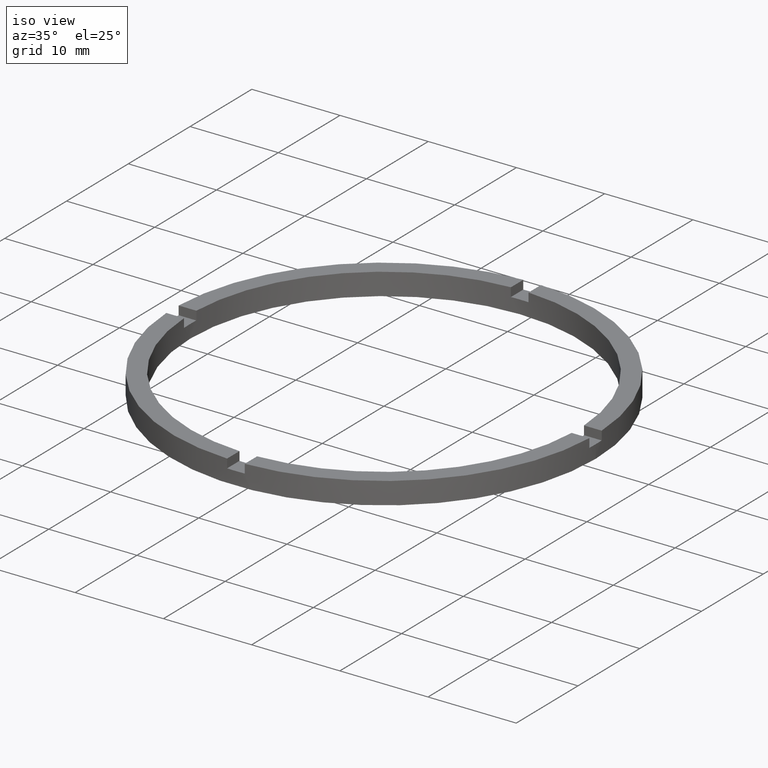
[diagram: clean part render]
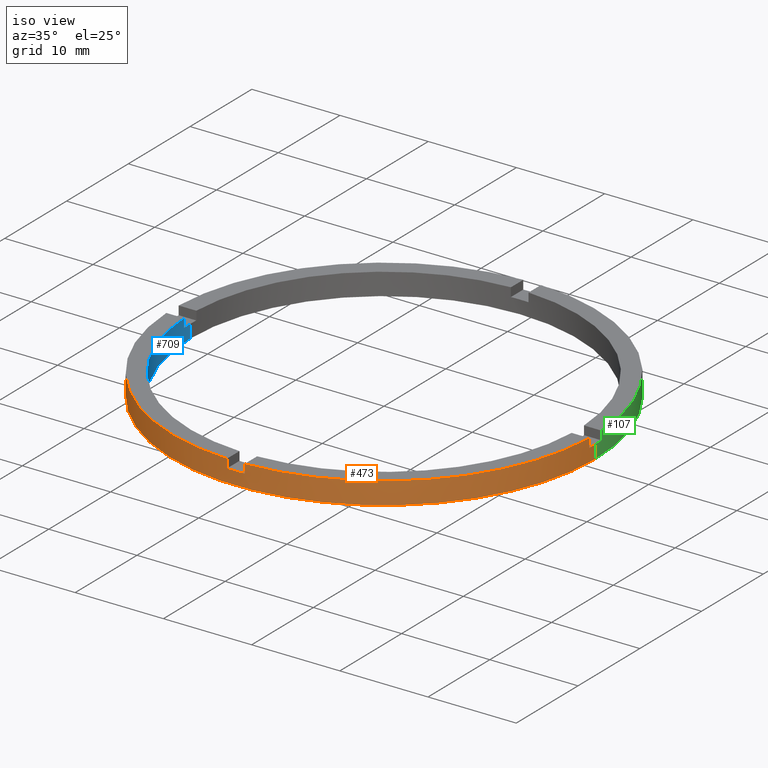
[diagram: same view with three faces highlighted in distinct colors, each labeled with its STEP entity id]
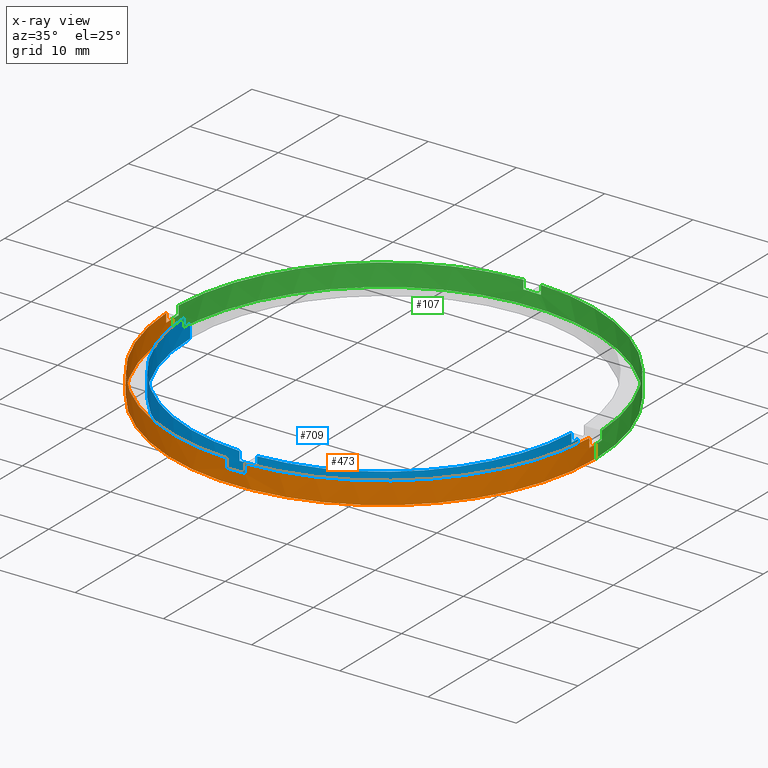
[diagram: x-ray of the same camera — body ghosted, the three highlighted faces saturated]
A machine part, iso view with three faces highlighted in distinct colors.
The next image is the same camera in x-ray (body ghosted, the three faces saturated) — at least one of them is partly hidden behind the body in this view.
Their STEP definitions:

[orange] entity #473 — the highlighted cylindrical surface (partial cylindrical patch) has radius 24 mm, axis along (-0, -0, -1).
#2 = CARTESIAN_POINT ( 'NONE',  ( 0.9999999999998389066, -23.97915761656360800, 1.500000000000000000 ) ) ;
#13 = VERTEX_POINT ( 'NONE', #703 ) ;
#18 = ORIENTED_EDGE ( 'NONE', *, *, #378, .F. ) ;
#19 = VERTEX_POINT ( 'NONE', #158 ) ;
#23 = ORIENTED_EDGE ( 'NONE', *, *, #393, .F. ) ;
#29 = VERTEX_POINT ( 'NONE', #502 ) ;
#37 = VECTOR ( 'NONE', #154, 1000.000000000000000 ) ;
#50 = ORIENTED_EDGE ( 'NONE', *, *, #303, .T. ) ;
#65 = CIRCLE ( 'NONE', #683, 24.00000000000000355 ) ;
#66 = VERTEX_POINT ( 'NONE', #467 ) ;
#67 = CIRCLE ( 'NONE', #519, 24.00000000000000355 ) ;
#75 = LINE ( 'NONE', #716, #326 ) ;
#76 = AXIS2_PLACEMENT_3D ( 'NONE', #133, #174, #425 ) ;
#79 = CARTESIAN_POINT ( 'NONE',  ( 0.000000000000000000, 0.000000000000000000, 1.500000000000000000 ) ) ;
#89 = CARTESIAN_POINT ( 'NONE',  ( -24.00000000000000355, 0.000000000000000000, 2.500000000000000000 ) ) ;
#128 = AXIS2_PLACEMENT_3D ( 'NONE', #735, #543, #290 ) ;
#130 = CARTESIAN_POINT ( 'NONE',  ( 0.000000000000000000, 0.000000000000000000, 2.500000000000000000 ) ) ;
#133 = CARTESIAN_POINT ( 'NONE',  ( 0.000000000000000000, 0.000000000000000000, 2.500000000000000000 ) ) ;
#137 = EDGE_CURVE ( 'NONE', #19, #691, #281, .T. ) ;
#141 = DIRECTION ( 'NONE',  ( -0.000000000000000000, -0.000000000000000000, -1.000000000000000000 ) ) ;
#143 = EDGE_CURVE ( 'NONE', #66, #218, #586, .T. ) ;
#154 = DIRECTION ( 'NONE',  ( -0.000000000000000000, -0.000000000000000000, -1.000000000000000000 ) ) ;
#158 = CARTESIAN_POINT ( 'NONE',  ( -23.97915761656360445, -1.000000000000025757, 2.500000000000000000 ) ) ;
#170 = VERTEX_POINT ( 'NONE', #379 ) ;
#174 = DIRECTION ( 'NONE',  ( -0.000000000000000000, -0.000000000000000000, -1.000000000000000000 ) ) ;
#195 = AXIS2_PLACEMENT_3D ( 'NONE', #130, #727, #518 ) ;
#202 = CARTESIAN_POINT ( 'NONE',  ( -23.97915761656360445, -1.000000000000025757, 1.500000000000000000 ) ) ;
#208 = CARTESIAN_POINT ( 'NONE',  ( 0.9999999999998393507, -23.97915761656361155, 2.500000000000000000 ) ) ;
#209 = CIRCLE ( 'NONE', #736, 24.00000000000000355 ) ;
#210 = CARTESIAN_POINT ( 'NONE',  ( -1.000000000000160760, -23.97915761656359734, 2.500000000000000000 ) ) ;
#214 = CARTESIAN_POINT ( 'NONE',  ( 0.000000000000000000, 0.000000000000000000, 2.500000000000000000 ) ) ;
#217 = EDGE_LOOP ( 'NONE', ( #531, #455, #464, #327, #569, #580, #275, #23, #560, #18, #50, #301 ) ) ;
#218 = VERTEX_POINT ( 'NONE', #551 ) ;
#244 = CARTESIAN_POINT ( 'NONE',  ( 0.000000000000000000, 0.000000000000000000, 0.000000000000000000 ) ) ;
#260 = CARTESIAN_POINT ( 'NONE',  ( -23.97915761656360445, -1.000000000000025757, 2.500000000000000000 ) ) ;
#275 = ORIENTED_EDGE ( 'NONE', *, *, #449, .T. ) ;
#281 = LINE ( 'NONE', #260, #37 ) ;
#290 = DIRECTION ( 'NONE',  ( 1.000000000000000000, 0.000000000000000000, 0.000000000000000000 ) ) ;
#291 = VERTEX_POINT ( 'NONE', #2 ) ;
#295 = DIRECTION ( 'NONE',  ( 1.000000000000000000, 0.000000000000000000, 0.000000000000000000 ) ) ;
#297 = DIRECTION ( 'NONE',  ( 0.000000000000000000, 0.000000000000000000, 1.000000000000000000 ) ) ;
#301 = ORIENTED_EDGE ( 'NONE', *, *, #768, .T. ) ;
#303 = EDGE_CURVE ( 'NONE', #521, #317, #342, .T. ) ;
#317 = VERTEX_POINT ( 'NONE', #686 ) ;
#325 = CARTESIAN_POINT ( 'NONE',  ( 24.00000000000000355, 2.939152317953648289E-15, 0.000000000000000000 ) ) ;
#326 = VECTOR ( 'NONE', #328, 1000.000000000000000 ) ;
#327 = ORIENTED_EDGE ( 'NONE', *, *, #143, .F. ) ;
#328 = DIRECTION ( 'NONE',  ( -0.000000000000000000, -0.000000000000000000, -1.000000000000000000 ) ) ;
#342 = LINE ( 'NONE', #89, #609 ) ;
#360 = VECTOR ( 'NONE', #485, 1000.000000000000000 ) ;
#361 = DIRECTION ( 'NONE',  ( -0.000000000000000000, 0.000000000000000000, 1.000000000000000000 ) ) ;
#378 = EDGE_CURVE ( 'NONE', #521, #691, #610, .T. ) ;
#379 = CARTESIAN_POINT ( 'NONE',  ( 23.97915761656359734, -1.000000000000157652, 1.500000000000000000 ) ) ;
#393 = EDGE_CURVE ( 'NONE', #19, #29, #67, .T. ) ;
#425 = DIRECTION ( 'NONE',  ( -1.000000000000000000, 0.000000000000000000, 0.000000000000000000 ) ) ;
#427 = EDGE_CURVE ( 'NONE', #170, #13, #65, .T. ) ;
#430 = VERTEX_POINT ( 'NONE', #325 ) ;
#431 = EDGE_CURVE ( 'NONE', #170, #218, #601, .T. ) ;
#449 = EDGE_CURVE ( 'NONE', #699, #29, #632, .T. ) ;
#454 = CARTESIAN_POINT ( 'NONE',  ( 0.000000000000000000, 0.000000000000000000, 1.500000000000000000 ) ) ;
#455 = ORIENTED_EDGE ( 'NONE', *, *, #427, .F. ) ;
#462 = EDGE_CURVE ( 'NONE', #66, #291, #634, .T. ) ;
#464 = ORIENTED_EDGE ( 'NONE', *, *, #431, .T. ) ;
#467 = CARTESIAN_POINT ( 'NONE',  ( 0.9999999999998389066, -23.97915761656360800, 2.500000000000000000 ) ) ;
#470 = DIRECTION ( 'NONE',  ( 1.000000000000000000, 0.000000000000000000, 0.000000000000000000 ) ) ;
#473 = ADVANCED_FACE ( 'NONE', ( #640 ), #607, .T. ) ;
#484 = DIRECTION ( 'NONE',  ( -0.000000000000000000, -0.000000000000000000, -1.000000000000000000 ) ) ;
#485 = DIRECTION ( 'NONE',  ( 0.000000000000000000, 0.000000000000000000, 1.000000000000000000 ) ) ;
#489 = EDGE_CURVE ( 'NONE', #13, #430, #75, .T. ) ;
#490 = AXIS2_PLACEMENT_3D ( 'NONE', #244, #705, #470 ) ;
#502 = CARTESIAN_POINT ( 'NONE',  ( -1.000000000000160316, -23.97915761656359379, 2.500000000000000000 ) ) ;
#518 = DIRECTION ( 'NONE',  ( 1.000000000000000000, 0.000000000000000000, 0.000000000000000000 ) ) ;
#519 = AXIS2_PLACEMENT_3D ( 'NONE', #214, #678, #295 ) ;
#521 = VERTEX_POINT ( 'NONE', #700 ) ;
#531 = ORIENTED_EDGE ( 'NONE', *, *, #489, .F. ) ;
#543 = DIRECTION ( 'NONE',  ( 0.000000000000000000, 0.000000000000000000, 1.000000000000000000 ) ) ;
#547 = CIRCLE ( 'NONE', #490, 24.00000000000000355 ) ;
#551 = CARTESIAN_POINT ( 'NONE',  ( 23.97915761656359734, -1.000000000000157652, 2.500000000000000000 ) ) ;
#560 = ORIENTED_EDGE ( 'NONE', *, *, #137, .T. ) ;
#569 = ORIENTED_EDGE ( 'NONE', *, *, #462, .T. ) ;
#580 = ORIENTED_EDGE ( 'NONE', *, *, #738, .F. ) ;
#586 = CIRCLE ( 'NONE', #195, 24.00000000000000355 ) ;
#601 = LINE ( 'NONE', #773, #619 ) ;
#607 = CYLINDRICAL_SURFACE ( 'NONE', #76, 24.00000000000000355 ) ;
#609 = VECTOR ( 'NONE', #141, 1000.000000000000000 ) ;
#610 = CIRCLE ( 'NONE', #128, 24.00000000000000355 ) ;
#619 = VECTOR ( 'NONE', #297, 1000.000000000000000 ) ;
#632 = LINE ( 'NONE', #210, #360 ) ;
#634 = LINE ( 'NONE', #208, #641 ) ;
#640 = FACE_OUTER_BOUND ( 'NONE', #217, .T. ) ;
#641 = VECTOR ( 'NONE', #484, 1000.000000000000000 ) ;
#677 = DIRECTION ( 'NONE',  ( 0.000000000000000000, 0.000000000000000000, 1.000000000000000000 ) ) ;
#678 = DIRECTION ( 'NONE',  ( 0.000000000000000000, 0.000000000000000000, 1.000000000000000000 ) ) ;
#683 = AXIS2_PLACEMENT_3D ( 'NONE', #79, #677, #770 ) ;
#686 = CARTESIAN_POINT ( 'NONE',  ( -24.00000000000000355, 0.000000000000000000, 0.000000000000000000 ) ) ;
#691 = VERTEX_POINT ( 'NONE', #202 ) ;
#699 = VERTEX_POINT ( 'NONE', #745 ) ;
#700 = CARTESIAN_POINT ( 'NONE',  ( -24.00000000000000355, 0.000000000000000000, 1.500000000000000000 ) ) ;
#703 = CARTESIAN_POINT ( 'NONE',  ( 24.00000000000000355, 2.939152317953648289E-15, 1.500000000000000000 ) ) ;
#705 = DIRECTION ( 'NONE',  ( 0.000000000000000000, 0.000000000000000000, 1.000000000000000000 ) ) ;
#716 = CARTESIAN_POINT ( 'NONE',  ( 24.00000000000000355, 2.939152317953648289E-15, 2.500000000000000000 ) ) ;
#727 = DIRECTION ( 'NONE',  ( 0.000000000000000000, 0.000000000000000000, 1.000000000000000000 ) ) ;
#735 = CARTESIAN_POINT ( 'NONE',  ( 0.000000000000000000, 0.000000000000000000, 1.500000000000000000 ) ) ;
#736 = AXIS2_PLACEMENT_3D ( 'NONE', #454, #361, #754 ) ;
#738 = EDGE_CURVE ( 'NONE', #699, #291, #209, .T. ) ;
#745 = CARTESIAN_POINT ( 'NONE',  ( -1.000000000000160316, -23.97915761656359379, 1.500000000000000000 ) ) ;
#754 = DIRECTION ( 'NONE',  ( 1.000000000000000000, 0.000000000000000000, 0.000000000000000000 ) ) ;
#768 = EDGE_CURVE ( 'NONE', #317, #430, #547, .T. ) ;
#770 = DIRECTION ( 'NONE',  ( 1.000000000000000000, 0.000000000000000000, 0.000000000000000000 ) ) ;
#773 = CARTESIAN_POINT ( 'NONE',  ( 23.97915761656359734, -1.000000000000157652, 2.500000000000000000 ) ) ;

[blue] entity #709 — the highlighted cylindrical surface (partial cylindrical patch) has radius 22 mm, axis along (-0, -0, -1).
#5 = VERTEX_POINT ( 'NONE', #335 ) ;
#12 = CARTESIAN_POINT ( 'NONE',  ( 21.97726097583590388, -1.000000000000157874, 2.500000000000000000 ) ) ;
#24 = VERTEX_POINT ( 'NONE', #233 ) ;
#45 = ORIENTED_EDGE ( 'NONE', *, *, #681, .F. ) ;
#52 = LINE ( 'NONE', #604, #579 ) ;
#58 = EDGE_CURVE ( 'NONE', #556, #5, #52, .T. ) ;
#69 = CIRCLE ( 'NONE', #140, 22.00000000000000000 ) ;
#81 = VECTOR ( 'NONE', #564, 1000.000000000000000 ) ;
#87 = LINE ( 'NONE', #12, #81 ) ;
#93 = CIRCLE ( 'NONE', #643, 22.00000000000000000 ) ;
#99 = CIRCLE ( 'NONE', #665, 22.00000000000000000 ) ;
#109 = LINE ( 'NONE', #596, #375 ) ;
#113 = LINE ( 'NONE', #349, #383 ) ;
#122 = EDGE_CURVE ( 'NONE', #288, #556, #600, .T. ) ;
#125 = DIRECTION ( 'NONE',  ( -0.000000000000000000, -0.000000000000000000, -1.000000000000000000 ) ) ;
#132 = AXIS2_PLACEMENT_3D ( 'NONE', #412, #496, #205 ) ;
#139 = EDGE_CURVE ( 'NONE', #440, #299, #294, .T. ) ;
#140 = AXIS2_PLACEMENT_3D ( 'NONE', #341, #515, #750 ) ;
#148 = CARTESIAN_POINT ( 'NONE',  ( -22.00000000000000000, 0.000000000000000000, 0.000000000000000000 ) ) ;
#151 = DIRECTION ( 'NONE',  ( -0.000000000000000000, -0.000000000000000000, -1.000000000000000000 ) ) ;
#165 = VERTEX_POINT ( 'NONE', #772 ) ;
#167 = DIRECTION ( 'NONE',  ( 0.000000000000000000, 0.000000000000000000, 1.000000000000000000 ) ) ;
#173 = EDGE_CURVE ( 'NONE', #433, #5, #93, .T. ) ;
#177 = CARTESIAN_POINT ( 'NONE',  ( 0.000000000000000000, 0.000000000000000000, 2.500000000000000000 ) ) ;
#186 = ORIENTED_EDGE ( 'NONE', *, *, #58, .T. ) ;
#193 = DIRECTION ( 'NONE',  ( -1.000000000000000000, 0.000000000000000000, 0.000000000000000000 ) ) ;
#205 = DIRECTION ( 'NONE',  ( 1.000000000000000000, 0.000000000000000000, 0.000000000000000000 ) ) ;
#215 = CARTESIAN_POINT ( 'NONE',  ( 21.97726097583590388, -1.000000000000157874, 2.500000000000000000 ) ) ;
#216 = AXIS2_PLACEMENT_3D ( 'NONE', #625, #540, #633 ) ;
#220 = ORIENTED_EDGE ( 'NONE', *, *, #487, .T. ) ;
#233 = CARTESIAN_POINT ( 'NONE',  ( -1.000000000000160538, -21.97726097583589677, 2.500000000000000000 ) ) ;
#237 = CARTESIAN_POINT ( 'NONE',  ( -21.97726097583590743, -1.000000000000025535, 1.500000000000000000 ) ) ;
#246 = AXIS2_PLACEMENT_3D ( 'NONE', #655, #151, #193 ) ;
#251 = EDGE_CURVE ( 'NONE', #505, #24, #99, .T. ) ;
#263 = VERTEX_POINT ( 'NONE', #215 ) ;
#266 = ORIENTED_EDGE ( 'NONE', *, *, #398, .F. ) ;
#272 = VERTEX_POINT ( 'NONE', #392 ) ;
#282 = CARTESIAN_POINT ( 'NONE',  ( -1.000000000000160538, -21.97726097583589677, 1.500000000000000000 ) ) ;
#288 = VERTEX_POINT ( 'NONE', #734 ) ;
#289 = ORIENTED_EDGE ( 'NONE', *, *, #300, .F. ) ;
#294 = CIRCLE ( 'NONE', #132, 22.00000000000000000 ) ;
#299 = VERTEX_POINT ( 'NONE', #439 ) ;
#300 = EDGE_CURVE ( 'NONE', #288, #263, #87, .T. ) ;
#305 = DIRECTION ( 'NONE',  ( 0.000000000000000000, 0.000000000000000000, 1.000000000000000000 ) ) ;
#314 = EDGE_CURVE ( 'NONE', #272, #433, #323, .T. ) ;
#323 = LINE ( 'NONE', #443, #623 ) ;
#324 = LINE ( 'NONE', #387, #629 ) ;
#335 = CARTESIAN_POINT ( 'NONE',  ( 22.00000000000000000, 2.694222958124176809E-15, 0.000000000000000000 ) ) ;
#341 = CARTESIAN_POINT ( 'NONE',  ( 0.000000000000000000, 0.000000000000000000, 2.500000000000000000 ) ) ;
#349 = CARTESIAN_POINT ( 'NONE',  ( -1.000000000000160982, -21.97726097583590033, 2.500000000000000000 ) ) ;
#355 = CIRCLE ( 'NONE', #216, 22.00000000000000000 ) ;
#374 = CYLINDRICAL_SURFACE ( 'NONE', #246, 22.00000000000000000 ) ;
#375 = VECTOR ( 'NONE', #125, 1000.000000000000000 ) ;
#383 = VECTOR ( 'NONE', #167, 1000.000000000000000 ) ;
#387 = CARTESIAN_POINT ( 'NONE',  ( 0.9999999999998391287, -21.97726097583591809, 2.500000000000000000 ) ) ;
#392 = CARTESIAN_POINT ( 'NONE',  ( -22.00000000000000000, 0.000000000000000000, 1.500000000000000000 ) ) ;
#398 = EDGE_CURVE ( 'NONE', #165, #299, #324, .T. ) ;
#407 = DIRECTION ( 'NONE',  ( -0.000000000000000000, -0.000000000000000000, -1.000000000000000000 ) ) ;
#412 = CARTESIAN_POINT ( 'NONE',  ( 0.000000000000000000, 0.000000000000000000, 1.500000000000000000 ) ) ;
#421 = CARTESIAN_POINT ( 'NONE',  ( 0.000000000000000000, 0.000000000000000000, 0.000000000000000000 ) ) ;
#429 = DIRECTION ( 'NONE',  ( 0.000000000000000000, 0.000000000000000000, 1.000000000000000000 ) ) ;
#433 = VERTEX_POINT ( 'NONE', #148 ) ;
#434 = VERTEX_POINT ( 'NONE', #237 ) ;
#439 = CARTESIAN_POINT ( 'NONE',  ( 0.9999999999998386846, -21.97726097583591454, 1.500000000000000000 ) ) ;
#440 = VERTEX_POINT ( 'NONE', #282 ) ;
#443 = CARTESIAN_POINT ( 'NONE',  ( -22.00000000000000000, 0.000000000000000000, 2.500000000000000000 ) ) ;
#447 = DIRECTION ( 'NONE',  ( 1.000000000000000000, 0.000000000000000000, 0.000000000000000000 ) ) ;
#453 = EDGE_CURVE ( 'NONE', #272, #434, #355, .T. ) ;
#474 = ORIENTED_EDGE ( 'NONE', *, *, #453, .T. ) ;
#480 = AXIS2_PLACEMENT_3D ( 'NONE', #654, #744, #447 ) ;
#487 = EDGE_CURVE ( 'NONE', #165, #263, #69, .T. ) ;
#495 = DIRECTION ( 'NONE',  ( -0.000000000000000000, -0.000000000000000000, -1.000000000000000000 ) ) ;
#496 = DIRECTION ( 'NONE',  ( -0.000000000000000000, 0.000000000000000000, 1.000000000000000000 ) ) ;
#497 = DIRECTION ( 'NONE',  ( 1.000000000000000000, 0.000000000000000000, 0.000000000000000000 ) ) ;
#505 = VERTEX_POINT ( 'NONE', #756 ) ;
#515 = DIRECTION ( 'NONE',  ( 0.000000000000000000, 0.000000000000000000, 1.000000000000000000 ) ) ;
#540 = DIRECTION ( 'NONE',  ( 0.000000000000000000, 0.000000000000000000, 1.000000000000000000 ) ) ;
#544 = DIRECTION ( 'NONE',  ( 1.000000000000000000, 0.000000000000000000, 0.000000000000000000 ) ) ;
#548 = ORIENTED_EDGE ( 'NONE', *, *, #314, .F. ) ;
#556 = VERTEX_POINT ( 'NONE', #611 ) ;
#561 = ORIENTED_EDGE ( 'NONE', *, *, #251, .T. ) ;
#564 = DIRECTION ( 'NONE',  ( 0.000000000000000000, 0.000000000000000000, 1.000000000000000000 ) ) ;
#579 = VECTOR ( 'NONE', #407, 1000.000000000000000 ) ;
#589 = ORIENTED_EDGE ( 'NONE', *, *, #139, .T. ) ;
#596 = CARTESIAN_POINT ( 'NONE',  ( -21.97726097583590743, -1.000000000000025535, 2.500000000000000000 ) ) ;
#599 = EDGE_LOOP ( 'NONE', ( #728, #186, #729, #548, #474, #45, #561, #733, #589, #266, #220, #289 ) ) ;
#600 = CIRCLE ( 'NONE', #480, 22.00000000000000000 ) ;
#604 = CARTESIAN_POINT ( 'NONE',  ( 22.00000000000000000, 2.694222958124176809E-15, 2.500000000000000000 ) ) ;
#611 = CARTESIAN_POINT ( 'NONE',  ( 22.00000000000000000, 2.694222958124176809E-15, 1.500000000000000000 ) ) ;
#623 = VECTOR ( 'NONE', #495, 1000.000000000000000 ) ;
#625 = CARTESIAN_POINT ( 'NONE',  ( 0.000000000000000000, 0.000000000000000000, 1.500000000000000000 ) ) ;
#629 = VECTOR ( 'NONE', #726, 1000.000000000000000 ) ;
#633 = DIRECTION ( 'NONE',  ( 1.000000000000000000, 0.000000000000000000, 0.000000000000000000 ) ) ;
#643 = AXIS2_PLACEMENT_3D ( 'NONE', #421, #429, #544 ) ;
#653 = FACE_OUTER_BOUND ( 'NONE', #599, .T. ) ;
#654 = CARTESIAN_POINT ( 'NONE',  ( 0.000000000000000000, 0.000000000000000000, 1.500000000000000000 ) ) ;
#655 = CARTESIAN_POINT ( 'NONE',  ( 0.000000000000000000, 0.000000000000000000, 2.500000000000000000 ) ) ;
#665 = AXIS2_PLACEMENT_3D ( 'NONE', #177, #305, #497 ) ;
#666 = EDGE_CURVE ( 'NONE', #440, #24, #113, .T. ) ;
#681 = EDGE_CURVE ( 'NONE', #505, #434, #109, .T. ) ;
#709 = ADVANCED_FACE ( 'NONE', ( #653 ), #374, .F. ) ;
#726 = DIRECTION ( 'NONE',  ( -0.000000000000000000, -0.000000000000000000, -1.000000000000000000 ) ) ;
#728 = ORIENTED_EDGE ( 'NONE', *, *, #122, .T. ) ;
#729 = ORIENTED_EDGE ( 'NONE', *, *, #173, .F. ) ;
#733 = ORIENTED_EDGE ( 'NONE', *, *, #666, .F. ) ;
#734 = CARTESIAN_POINT ( 'NONE',  ( 21.97726097583590388, -1.000000000000157874, 1.500000000000000000 ) ) ;
#744 = DIRECTION ( 'NONE',  ( 0.000000000000000000, 0.000000000000000000, 1.000000000000000000 ) ) ;
#750 = DIRECTION ( 'NONE',  ( 1.000000000000000000, 0.000000000000000000, 0.000000000000000000 ) ) ;
#756 = CARTESIAN_POINT ( 'NONE',  ( -21.97726097583590743, -1.000000000000025535, 2.500000000000000000 ) ) ;
#772 = CARTESIAN_POINT ( 'NONE',  ( 0.9999999999998386846, -21.97726097583591454, 2.500000000000000000 ) ) ;

[green] entity #107 — the highlighted cylindrical surface (partial cylindrical patch) has radius 24 mm, axis along (-0, -0, -1).
#10 = ORIENTED_EDGE ( 'NONE', *, *, #760, .F. ) ;
#11 = EDGE_CURVE ( 'NONE', #688, #603, #574, .T. ) ;
#13 = VERTEX_POINT ( 'NONE', #703 ) ;
#16 = DIRECTION ( 'NONE',  ( 0.000000000000000000, -0.000000000000000000, 1.000000000000000000 ) ) ;
#27 = AXIS2_PLACEMENT_3D ( 'NONE', #129, #16, #354 ) ;
#40 = ORIENTED_EDGE ( 'NONE', *, *, #212, .T. ) ;
#44 = DIRECTION ( 'NONE',  ( -0.000000000000000000, -0.000000000000000000, -1.000000000000000000 ) ) ;
#46 = CARTESIAN_POINT ( 'NONE',  ( 0.9999999999999735767, 23.97915761656360090, 2.500000000000000000 ) ) ;
#47 = ORIENTED_EDGE ( 'NONE', *, *, #419, .F. ) ;
#51 = DIRECTION ( 'NONE',  ( 1.000000000000000000, 0.000000000000000000, 0.000000000000000000 ) ) ;
#57 = CARTESIAN_POINT ( 'NONE',  ( -23.97915761656360445, 0.9999999999999742428, 2.500000000000000000 ) ) ;
#71 = LINE ( 'NONE', #390, #627 ) ;
#75 = LINE ( 'NONE', #716, #326 ) ;
#88 = CIRCLE ( 'NONE', #172, 24.00000000000000355 ) ;
#89 = CARTESIAN_POINT ( 'NONE',  ( -24.00000000000000355, 0.000000000000000000, 2.500000000000000000 ) ) ;
#95 = CIRCLE ( 'NONE', #192, 24.00000000000000355 ) ;
#101 = LINE ( 'NONE', #668, #367 ) ;
#107 = ADVANCED_FACE ( 'NONE', ( #572 ), #286, .T. ) ;
#129 = CARTESIAN_POINT ( 'NONE',  ( 0.000000000000000000, 0.000000000000000000, 1.500000000000000000 ) ) ;
#136 = CARTESIAN_POINT ( 'NONE',  ( 0.000000000000000000, 0.000000000000000000, 1.500000000000000000 ) ) ;
#141 = DIRECTION ( 'NONE',  ( -0.000000000000000000, -0.000000000000000000, -1.000000000000000000 ) ) ;
#157 = CARTESIAN_POINT ( 'NONE',  ( -23.97915761656360445, 0.9999999999999742428, 1.500000000000000000 ) ) ;
#172 = AXIS2_PLACEMENT_3D ( 'NONE', #446, #178, #689 ) ;
#175 = VERTEX_POINT ( 'NONE', #536 ) ;
#176 = DIRECTION ( 'NONE',  ( 1.000000000000000000, 0.000000000000000000, 0.000000000000000000 ) ) ;
#178 = DIRECTION ( 'NONE',  ( 0.000000000000000000, 0.000000000000000000, 1.000000000000000000 ) ) ;
#184 = DIRECTION ( 'NONE',  ( -0.000000000000000000, -0.000000000000000000, -1.000000000000000000 ) ) ;
#192 = AXIS2_PLACEMENT_3D ( 'NONE', #136, #428, #176 ) ;
#203 = VERTEX_POINT ( 'NONE', #391 ) ;
#212 = EDGE_CURVE ( 'NONE', #175, #567, #348, .T. ) ;
#213 = DIRECTION ( 'NONE',  ( 0.000000000000000000, 0.000000000000000000, 1.000000000000000000 ) ) ;
#221 = ORIENTED_EDGE ( 'NONE', *, *, #516, .T. ) ;
#227 = CIRCLE ( 'NONE', #27, 24.00000000000000355 ) ;
#231 = DIRECTION ( 'NONE',  ( 0.000000000000000000, 0.000000000000000000, 1.000000000000000000 ) ) ;
#234 = EDGE_CURVE ( 'NONE', #203, #759, #88, .T. ) ;
#265 = ORIENTED_EDGE ( 'NONE', *, *, #423, .T. ) ;
#286 = CYLINDRICAL_SURFACE ( 'NONE', #746, 24.00000000000000355 ) ;
#303 = EDGE_CURVE ( 'NONE', #521, #317, #342, .T. ) ;
#310 = EDGE_LOOP ( 'NONE', ( #757, #765, #265, #593, #47, #762, #549, #40, #10, #221, #553, #321 ) ) ;
#317 = VERTEX_POINT ( 'NONE', #686 ) ;
#318 = CIRCLE ( 'NONE', #742, 24.00000000000000355 ) ;
#321 = ORIENTED_EDGE ( 'NONE', *, *, #363, .T. ) ;
#325 = CARTESIAN_POINT ( 'NONE',  ( 24.00000000000000355, 2.939152317953648289E-15, 0.000000000000000000 ) ) ;
#326 = VECTOR ( 'NONE', #328, 1000.000000000000000 ) ;
#328 = DIRECTION ( 'NONE',  ( -0.000000000000000000, -0.000000000000000000, -1.000000000000000000 ) ) ;
#331 = CARTESIAN_POINT ( 'NONE',  ( -23.97915761656360445, 0.9999999999999742428, 2.500000000000000000 ) ) ;
#342 = LINE ( 'NONE', #89, #609 ) ;
#348 = LINE ( 'NONE', #436, #624 ) ;
#351 = DIRECTION ( 'NONE',  ( 0.000000000000000000, 0.000000000000000000, 1.000000000000000000 ) ) ;
#352 = CIRCLE ( 'NONE', #638, 24.00000000000000355 ) ;
#354 = DIRECTION ( 'NONE',  ( 1.000000000000000000, 0.000000000000000000, 0.000000000000000000 ) ) ;
#363 = EDGE_CURVE ( 'NONE', #203, #509, #71, .T. ) ;
#367 = VECTOR ( 'NONE', #761, 1000.000000000000000 ) ;
#381 = CIRCLE ( 'NONE', #684, 24.00000000000000355 ) ;
#386 = DIRECTION ( 'NONE',  ( 1.000000000000000000, 0.000000000000000000, 0.000000000000000000 ) ) ;
#390 = CARTESIAN_POINT ( 'NONE',  ( 23.97915761656361155, 0.9999999999998423483, 2.500000000000000000 ) ) ;
#391 = CARTESIAN_POINT ( 'NONE',  ( 23.97915761656361155, 0.9999999999998423483, 2.500000000000000000 ) ) ;
#396 = EDGE_CURVE ( 'NONE', #13, #509, #95, .T. ) ;
#397 = CARTESIAN_POINT ( 'NONE',  ( 0.000000000000000000, 0.000000000000000000, 2.500000000000000000 ) ) ;
#419 = EDGE_CURVE ( 'NONE', #688, #521, #352, .T. ) ;
#423 = EDGE_CURVE ( 'NONE', #430, #317, #318, .T. ) ;
#428 = DIRECTION ( 'NONE',  ( 0.000000000000000000, 0.000000000000000000, 1.000000000000000000 ) ) ;
#430 = VERTEX_POINT ( 'NONE', #325 ) ;
#436 = CARTESIAN_POINT ( 'NONE',  ( -1.000000000000025979, 23.97915761656360445, 2.500000000000000000 ) ) ;
#446 = CARTESIAN_POINT ( 'NONE',  ( 0.000000000000000000, 0.000000000000000000, 2.500000000000000000 ) ) ;
#457 = DIRECTION ( 'NONE',  ( -1.000000000000000000, 0.000000000000000000, 0.000000000000000000 ) ) ;
#475 = CARTESIAN_POINT ( 'NONE',  ( 0.9999999999999735767, 23.97915761656360090, 1.500000000000000000 ) ) ;
#483 = VERTEX_POINT ( 'NONE', #475 ) ;
#489 = EDGE_CURVE ( 'NONE', #13, #430, #75, .T. ) ;
#509 = VERTEX_POINT ( 'NONE', #657 ) ;
#516 = EDGE_CURVE ( 'NONE', #483, #759, #101, .T. ) ;
#521 = VERTEX_POINT ( 'NONE', #700 ) ;
#536 = CARTESIAN_POINT ( 'NONE',  ( -1.000000000000025535, 23.97915761656360090, 2.500000000000000000 ) ) ;
#542 = CARTESIAN_POINT ( 'NONE',  ( 0.000000000000000000, 0.000000000000000000, 1.500000000000000000 ) ) ;
#549 = ORIENTED_EDGE ( 'NONE', *, *, #616, .F. ) ;
#553 = ORIENTED_EDGE ( 'NONE', *, *, #234, .F. ) ;
#567 = VERTEX_POINT ( 'NONE', #752 ) ;
#572 = FACE_OUTER_BOUND ( 'NONE', #310, .T. ) ;
#574 = LINE ( 'NONE', #331, #584 ) ;
#584 = VECTOR ( 'NONE', #351, 1000.000000000000000 ) ;
#593 = ORIENTED_EDGE ( 'NONE', *, *, #303, .F. ) ;
#603 = VERTEX_POINT ( 'NONE', #57 ) ;
#609 = VECTOR ( 'NONE', #141, 1000.000000000000000 ) ;
#616 = EDGE_CURVE ( 'NONE', #175, #603, #381, .T. ) ;
#624 = VECTOR ( 'NONE', #184, 1000.000000000000000 ) ;
#627 = VECTOR ( 'NONE', #685, 1000.000000000000000 ) ;
#635 = DIRECTION ( 'NONE',  ( 0.000000000000000000, 0.000000000000000000, 1.000000000000000000 ) ) ;
#638 = AXIS2_PLACEMENT_3D ( 'NONE', #542, #213, #386 ) ;
#657 = CARTESIAN_POINT ( 'NONE',  ( 23.97915761656361155, 0.9999999999998423483, 1.500000000000000000 ) ) ;
#668 = CARTESIAN_POINT ( 'NONE',  ( 0.9999999999999740208, 23.97915761656360445, 2.500000000000000000 ) ) ;
#671 = CARTESIAN_POINT ( 'NONE',  ( 0.000000000000000000, 0.000000000000000000, 2.500000000000000000 ) ) ;
#684 = AXIS2_PLACEMENT_3D ( 'NONE', #671, #231, #51 ) ;
#685 = DIRECTION ( 'NONE',  ( -0.000000000000000000, -0.000000000000000000, -1.000000000000000000 ) ) ;
#686 = CARTESIAN_POINT ( 'NONE',  ( -24.00000000000000355, 0.000000000000000000, 0.000000000000000000 ) ) ;
#688 = VERTEX_POINT ( 'NONE', #157 ) ;
#689 = DIRECTION ( 'NONE',  ( 1.000000000000000000, 0.000000000000000000, 0.000000000000000000 ) ) ;
#700 = CARTESIAN_POINT ( 'NONE',  ( -24.00000000000000355, 0.000000000000000000, 1.500000000000000000 ) ) ;
#703 = CARTESIAN_POINT ( 'NONE',  ( 24.00000000000000355, 2.939152317953648289E-15, 1.500000000000000000 ) ) ;
#716 = CARTESIAN_POINT ( 'NONE',  ( 24.00000000000000355, 2.939152317953648289E-15, 2.500000000000000000 ) ) ;
#732 = CARTESIAN_POINT ( 'NONE',  ( 0.000000000000000000, 0.000000000000000000, 0.000000000000000000 ) ) ;
#742 = AXIS2_PLACEMENT_3D ( 'NONE', #732, #635, #777 ) ;
#746 = AXIS2_PLACEMENT_3D ( 'NONE', #397, #44, #457 ) ;
#752 = CARTESIAN_POINT ( 'NONE',  ( -1.000000000000025535, 23.97915761656360090, 1.500000000000000000 ) ) ;
#757 = ORIENTED_EDGE ( 'NONE', *, *, #396, .F. ) ;
#759 = VERTEX_POINT ( 'NONE', #46 ) ;
#760 = EDGE_CURVE ( 'NONE', #483, #567, #227, .T. ) ;
#761 = DIRECTION ( 'NONE',  ( 0.000000000000000000, 0.000000000000000000, 1.000000000000000000 ) ) ;
#762 = ORIENTED_EDGE ( 'NONE', *, *, #11, .T. ) ;
#765 = ORIENTED_EDGE ( 'NONE', *, *, #489, .T. ) ;
#777 = DIRECTION ( 'NONE',  ( 1.000000000000000000, 0.000000000000000000, 0.000000000000000000 ) ) ;